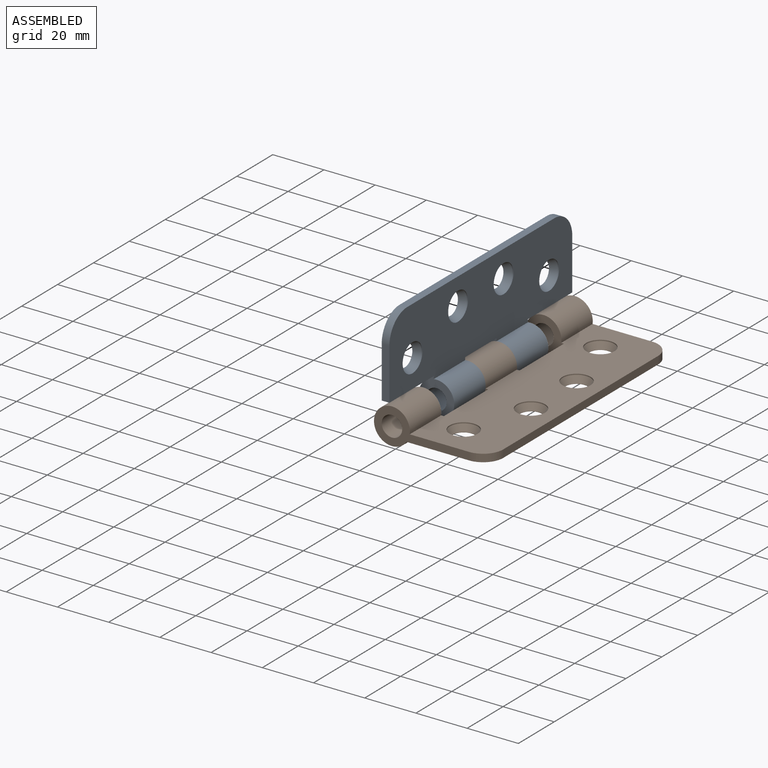
[diagram: assembled view]
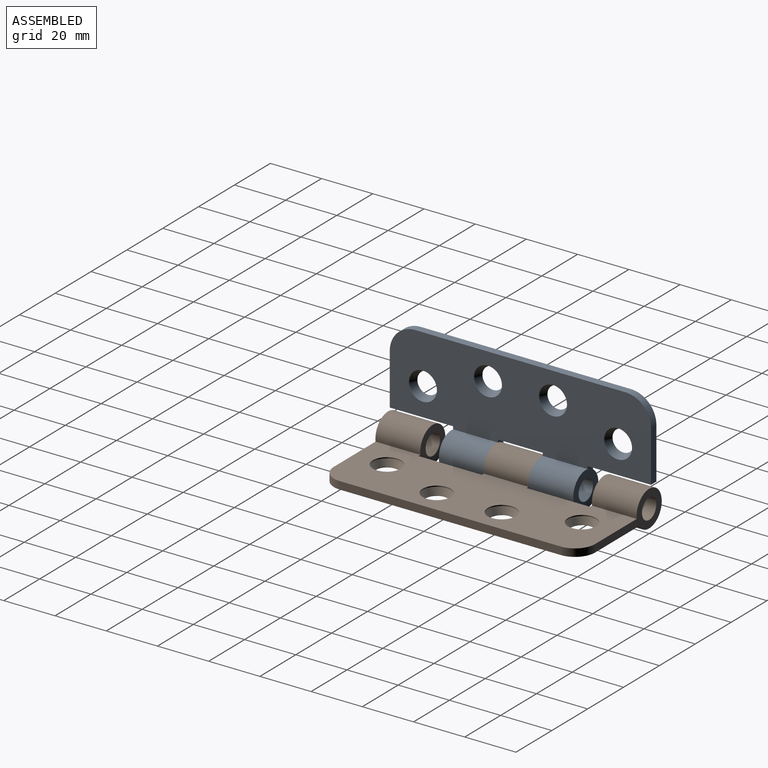
[diagram: assembled view, second angle]
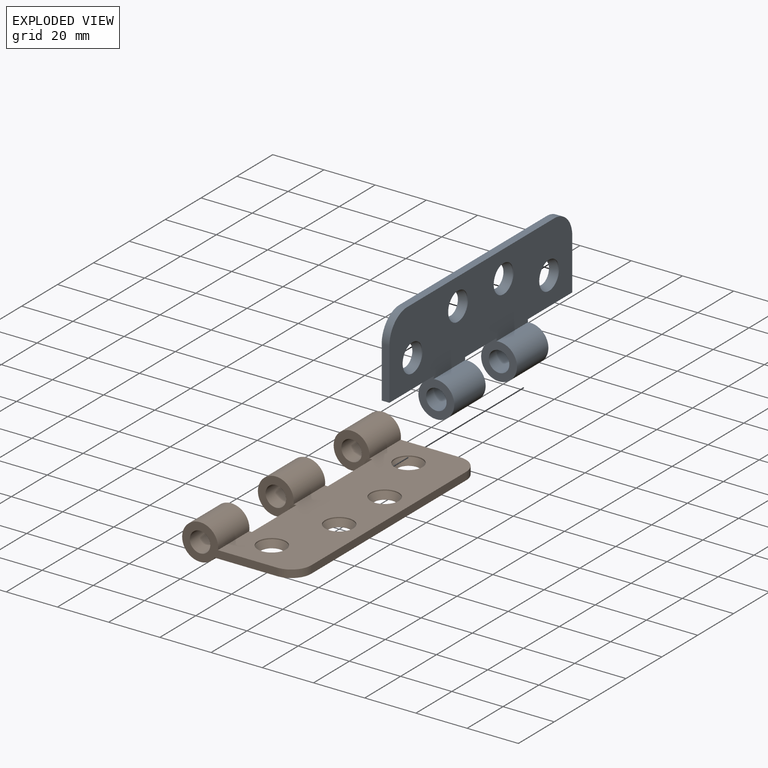
[diagram: exploded view]
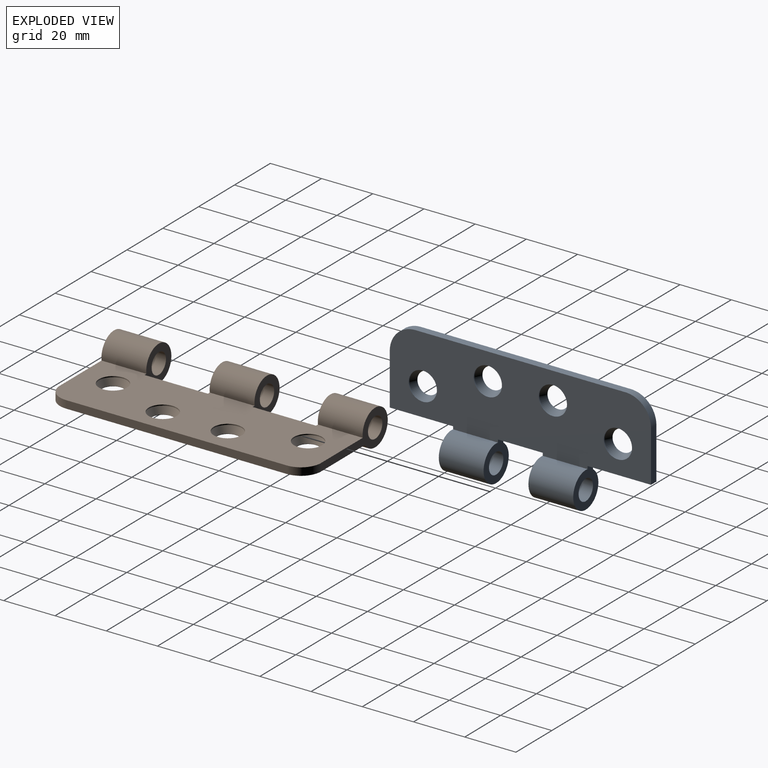
[diagram: exploded view, second angle]
FCSTD DOCUMENT  (FreeCAD 1.0R39319 (Git))
Label: OCT-LDHNG-AA
License: Creative Commons Attribution 4.0
LicenseURL: https://creativecommons.org/licenses/by/4.0/
objects: Sketcher::SketchObject×6, PartDesign::Pad×2, PartDesign::Pocket×2, PartDesign::Plane×2, PartDesign::Hole×2, PartDesign::Fillet×2, PartDesign::Body×2, App::Link×2, App::FeaturePython×2, PartDesign::CoordinateSystem×1, Spreadsheet::Sheet×1, App::Part×1, Assembly::JointGroup×1, Assembly::AssemblyObject×1
note: 41 computed .brp shape members not serialized (recipe doc carries the construction recipe); baked Part::Feature solids carry a one-line shape summary decoded from their .brp

FEATURE [PartDesign::CoordinateSystem] LCS_0
  AttacherType = Attacher::AttachEngine3D
  AttachmentSupport = -> [X_Axis]
  MapMode = 2
FEATURE [Sketcher::SketchObject] Sketch
  ArcFitTolerance = 0
  AttachmentSupport = -> [XZ_Plane001]
  FullyConstrained = true
  MakeInternals = false
  MapMode = 5
  Placement = pos=(0,0,0) rot=(1,0,0;1.5708rad)
  sketch-geometry (6):
    g0: ArcOfCircle CenterX=0 CenterY=0 CenterZ=0 NormalX=0 NormalY=0 NormalZ=1 AngleXU=0 Radius=7 StartAngle=6.13984 EndAngle=11.9581
    g1: LineSegment StartX=6.9282 StartY=-1 StartZ=0 EndX=38 EndY=-1 EndZ=0
    g2: LineSegment StartX=38 StartY=-1 StartZ=0 EndX=38 EndY=-4 EndZ=0
    g3: LineSegment StartX=38 StartY=-4 StartZ=0 EndX=5.74456 EndY=-4 EndZ=0
    g4: GeomPoint [constr] X=0 Y=-7 Z=0
    g5: Circle CenterX=0 CenterY=0 CenterZ=0 NormalX=0 NormalY=0 NormalZ=1 AngleXU=0 Radius=4
  constraints (16):
    c: Coincident(g1,g0)
    c: Horizontal(g1)
    c: Coincident(g2,g1)
    c: Vertical(g2)
    c: Coincident(g3,g2)
    c: Coincident(g3,g0)
    c: Coincident(g0,g-1)
    c: Horizontal(g3)
    c: DistanceY(g2,g2) = 3
    c: PointOnObject(g4,g0)
    c: PointOnObject(g4,g-2)
    c: DistanceY(g4,g0) = 3
    c: Radius(g0) = 7
    c: DistanceX(g0,g1) = 38
    c: Coincident(g5,g0)
    c: Diameter(g5) = 8
FEATURE [PartDesign::Pad] Pad
  Direction = (0,-1,2e-16)
  Length = 102
  Length2 = 10
  Placement = pos=(0,0,0) rot=(1,0,0;1.5708rad)
  Profile = -> Sketch
  ReferenceAxis = -> Sketch [N_Axis]
  Suppressed = false
  Type = 0
FEATURE [Sketcher::SketchObject] Sketch001
  ArcFitTolerance = 0
  AttachmentSupport = -> [XY_Plane001]
  FullyConstrained = true
  MakeInternals = false
  MapMode = 5
  sketch-geometry (18):
    g0: LineSegment StartX=8 StartY=-17.5 StartZ=0 EndX=8 EndY=-42.25 EndZ=0
    g1: LineSegment StartX=8 StartY=-42.25 StartZ=0 EndX=-7 EndY=-42.25 EndZ=0
    g2: LineSegment StartX=-7 StartY=-42.25 StartZ=0 EndX=-7 EndY=-17.5 EndZ=0
    g3: LineSegment StartX=-7 StartY=-59.75 StartZ=0 EndX=8 EndY=-59.75 EndZ=0
    g4: LineSegment StartX=8 StartY=-59.75 StartZ=0 EndX=8 EndY=-84.5 EndZ=0
    g5: LineSegment StartX=8 StartY=-84.5 StartZ=0 EndX=-7 EndY=-84.5 EndZ=0
    g6: LineSegment StartX=-7 StartY=-84.5 StartZ=0 EndX=-7 EndY=-59.75 EndZ=0
    g7: LineSegment [constr] StartX=8 StartY=-17.5 StartZ=0 EndX=8 EndY=0 EndZ=0
    g8: LineSegment [constr] StartX=8 StartY=0 StartZ=0 EndX=-7 EndY=0 EndZ=0
    g9: LineSegment [constr] StartX=-7 StartY=0 StartZ=0 EndX=-7 EndY=-17.5 EndZ=0
    g10: LineSegment [constr] StartX=-7 StartY=-42.25 StartZ=0 EndX=8 EndY=-42.25 EndZ=0
    g11: LineSegment [constr] StartX=8 StartY=-42.25 StartZ=0 EndX=8 EndY=-59.75 EndZ=0
    g12: LineSegment [constr] StartX=-7 StartY=-59.75 StartZ=0 EndX=-7 EndY=-42.25 EndZ=0
    g13: LineSegment [constr] StartX=8 StartY=-84.5 StartZ=0 EndX=8 EndY=-102 EndZ=0
    g14: LineSegment [constr] StartX=8 StartY=-102 StartZ=0 EndX=-7 EndY=-102 EndZ=0
    g15: LineSegment [constr] StartX=-7 StartY=-102 StartZ=0 EndX=-7 EndY=-84.5 EndZ=0
    g16: LineSegment StartX=-7 StartY=-17.5 StartZ=0 EndX=8 EndY=-17.5 EndZ=0
    g17: LineSegment [constr] StartX=0 StartY=0 StartZ=0 EndX=0 EndY=-102 EndZ=0
  constraints (49):
    c: Coincident(g0,g1)
    c: Coincident(g1,g2)
    c: Horizontal(g1)
    c: Vertical(g0)
    c: Vertical(g2)
    c: Coincident(g4,g5)
    c: Coincident(g5,g6)
    c: Coincident(g6,g3)
    c: Horizontal(g3)
    c: Horizontal(g5)
    c: Vertical(g4)
    c: Vertical(g6)
    c: Coincident(g7,g8)
    c: Coincident(g8,g9)
    c: Horizontal(g8)
    c: Vertical(g7)
    c: Vertical(g9)
    c: Coincident(g10,g11)
    c: Coincident(g12,g10)
    c: Vertical(g11)
    c: Vertical(g12)
    c: Coincident(g13,g14)
    c: Coincident(g14,g15)
    c: Horizontal(g14)
    c: Vertical(g13)
    c: Vertical(g15)
    c: Coincident(g10,g1)
    c: Coincident(g0,g10)
    c: Coincident(g16,g0)
    c: Horizontal(g16)
    c: Coincident(g16,g2)
    c: Coincident(g3,g12)
    c: Coincident(g3,g11)
    c: Coincident(g4,g3)
    c: Coincident(g0,g7)
    c: Coincident(g13,g4)
    c: Coincident(g15,g5)
    c: Coincident(g9,g2)
    c: DistanceX(g8,g8) = 15
    c: PointOnObject(g17,g8)
    c: PointOnObject(g17,g14)
    c: Vertical(g17)
    c: DistanceX(g8,g17) = 7
    c: Equal(g9,g12)
    c: Equal(g12,g15)
    c: DistanceY(g9,g9) = 17.5
    c: DistanceY(g14,g8) = 102
    c: Equal(g6,g2)
    c: Coincident(g17,g-1)
FEATURE [PartDesign::Pocket] Pocket  label="loops outer"
  BaseFeature = -> Pad
  Direction = (0,0,-1)
  Length = 14
  Length2 = 5
  Midplane = true
  Placement = pos=(0,0,0) rot=(1,0,0;1.5708rad)
  Profile = -> Sketch001
  ReferenceAxis = -> Sketch001 [N_Axis]
  Suppressed = false
  Type = 0
FEATURE [PartDesign::Plane] DatumPlane  label="outer top face"
  AttachmentOffset = pos=(0,0,-1) rot=(0,0,1;0rad)
  AttachmentSupport = -> [XY_Plane001]
  Length = 80.8897
  MapMode = 5
  Placement = pos=(0,0,-1) rot=(0,0,1;0rad)
  ResizeMode = 0
  Width = 144.89
FEATURE [Sketcher::SketchObject] Sketch002
  ArcFitTolerance = 0
  AttachmentSupport = -> [DatumPlane]
  FullyConstrained = true
  MakeInternals = false
  MapMode = 5
  Placement = pos=(0,0,-1) rot=(0,0,1;0rad)
  sketch-geometry (9):
    g0: Circle CenterX=19 CenterY=-12.9 CenterZ=0 NormalX=0 NormalY=0 NormalZ=1 AngleXU=0 Radius=4
    g1: Circle CenterX=27.5 CenterY=-38.3 CenterZ=0 NormalX=0 NormalY=0 NormalZ=1 AngleXU=0 Radius=4
    g2: Circle CenterX=27.5 CenterY=-63.7 CenterZ=0 NormalX=0 NormalY=0 NormalZ=1 AngleXU=0 Radius=4
    g3: Circle CenterX=19 CenterY=-89.1 CenterZ=0 NormalX=0 NormalY=0 NormalZ=1 AngleXU=0 Radius=4
    g4: LineSegment [constr] StartX=19 StartY=-89.1 StartZ=0 EndX=19 EndY=-12.9 EndZ=0
    g5: LineSegment [constr] StartX=19 StartY=-12.9 StartZ=0 EndX=27.5 EndY=-38.3 EndZ=0
    g6: LineSegment [constr] StartX=27.5 StartY=-38.3 StartZ=0 EndX=27.5 EndY=-63.7 EndZ=0
    g7: LineSegment [constr] StartX=27.5 StartY=-63.7 StartZ=0 EndX=19 EndY=-89.1 EndZ=0
    g8: LineSegment [constr] StartX=0 StartY=-51 StartZ=0 EndX=19 EndY=-51 EndZ=0
  constraints (23):
    c: Coincident(g4,g3)
    c: Coincident(g4,g0)
    c: Coincident(g5,g0)
    c: Coincident(g5,g1)
    c: Coincident(g6,g1)
    c: Coincident(g6,g2)
    c: Coincident(g7,g6)
    c: Coincident(g7,g3)
    c: Vertical(g4)
    c: Vertical(g6)
    c: Equal(g5,g7)
    c: Equal(g2,g1)
    c: Equal(g1,g0)
    c: Equal(g0,g3)
    c: Diameter(g0) = 8
    c: DistanceY(g8,g-1) = 51
    c: PointOnObject(g8,g-2)
    c: Symmetric(g1,g2,g8)
    c: DistanceX(g-1,g3) = 19
    c: DistanceX(g-1,g2) = 27.5
    c: DistanceY(g6,g6) = 25.4
    c: PointOnObject(g8,g4)
    c: DistanceY(g4,g4) = 76.2
FEATURE [PartDesign::Hole] Hole  label="mounting holes outer"
  BaseFeature = -> Pocket
  CustomThreadClearance = 0
  Depth = 226.969
  DepthType = 1
  Diameter = 8.4
  DrillForDepth = true
  DrillPoint = 1
  DrillPointAngle = 118
  HoleCutCountersinkAngle = 55
  HoleCutCustomValues = false
  HoleCutDepth = 0.4
  HoleCutDiameter = 11
  HoleCutType = 3
  ModelThread = false
  Placement = pos=(0,0,0) rot=(1,0,0;1.5708rad)
  Profile = -> Sketch002
  Suppressed = false
  Tapered = false
  TaperedAngle = 90
  ThreadClass = 0
  ThreadDepth = 226.969
  ThreadDepthType = 0
  ThreadDirection = 0
  ThreadFit = 1
  ThreadSize = 16
  ThreadType = 1
  Threaded = false
  UseCustomThreadClearance = false
FEATURE [PartDesign::Fillet] Fillet
  Base = -> Hole [Edge42,Edge9]
  BaseFeature = -> Hole
  Placement = pos=(0,0,0) rot=(1,0,0;1.5708rad)
  Radius = 7.9
  SupportTransform = false
  Suppressed = false
  UseAllEdges = false
FEATURE [PartDesign::Body] outer_half  label="outer half"
  AllowCompound = false
  Group = -> [DatumPlane,Sketch,Pad,Sketch001,Pocket,Sketch002,Hole,Fillet]
  Origin = -> Origin001
  Tip = -> Fillet
FEATURE [Sketcher::SketchObject] Sketch003
  ArcFitTolerance = 0
  AttachmentSupport = -> [XZ_Plane002]
  FullyConstrained = true
  MakeInternals = false
  MapMode = 5
  Placement = pos=(0,0,0) rot=(1,0,0;1.5708rad)
  expr: Constraints[17] = 180 - <<local>>.HingeAngle
  sketch-geometry (7):
    g0: Circle CenterX=0 CenterY=0 CenterZ=0 NormalX=0 NormalY=0 NormalZ=1 AngleXU=0 Radius=4
    g1: ArcOfCircle CenterX=0 CenterY=0 CenterZ=0 NormalX=0 NormalY=0 NormalZ=1 AngleXU=0 Radius=7 StartAngle=2.17904 EndAngle=7.99733
    g2: LineSegment StartX=-1 StartY=6.9282 StartZ=0 EndX=-1 EndY=38 EndZ=0
    g3: LineSegment StartX=-1 StartY=38 StartZ=0 EndX=-4 EndY=38 EndZ=0
    g4: LineSegment StartX=-4 StartY=38 StartZ=0 EndX=-4 EndY=5.74456 EndZ=0
    g5: GeomPoint [constr] X=-7 Y=9e-16 Z=0
    g6: LineSegment [constr] StartX=-7 StartY=9e-16 StartZ=0 EndX=-4 EndY=5e-16 EndZ=0
  constraints (19):
    c: Coincident(g-1,g0)
    c: Diameter(g0) = 8
    c: Coincident(g2,g1)
    c: Coincident(g3,g2)
    c: Coincident(g4,g3)
    c: Coincident(g1,g4)
    c: Perpendicular(g3,g2)
    c: Distance(g3) = 3
    c: Perpendicular(g3,g4)
    c: PointOnObject(g5,g1)
    c: Coincident(g6,g5)
    c: Perpendicular(g1,g6)
    c: Perpendicular(g4,g6)
    c: Distance(g6) = 3
    c: PointOnObject(g6,g4)
    c: Coincident(g1,g0)
    c: Radius(g1) = 7
    c: Angle(g-2,g6) = 1.5708
    c: Distance(g6,g3) = 38
FEATURE [PartDesign::Pad] Pad001
  Direction = (0,-1,2e-16)
  Length = 102
  Length2 = 10
  Placement = pos=(0,0,0) rot=(1,0,0;1.5708rad)
  Profile = -> Sketch003
  ReferenceAxis = -> Sketch003 [N_Axis]
  Suppressed = false
  Type = 0
FEATURE [PartDesign::Plane] DatumPlane001  label="inner top face"
  AttachmentOffset = pos=(-1,0,-1e-16) rot=(0,1,0;1.5708rad)
  AttachmentSupport = -> [XY_Plane002]
  Length = 80.8897
  MapMode = 5
  Placement = pos=(-1,0,-1e-16) rot=(0,1,0;1.5708rad)
  ResizeMode = 0
  Width = 144.89
  expr: .AttachmentOffset.Base.x = -sin(<<local>>.HingeAngle)
  expr: .AttachmentOffset.Base.z = -cos(<<local>>.HingeAngle)
  expr: .AttachmentOffset.Rotation.Pitch = <<local>>.HingeAngle
FEATURE [Sketcher::SketchObject] Sketch004
  ArcFitTolerance = 0
  AttachmentSupport = -> [DatumPlane001]
  FullyConstrained = true
  MakeInternals = false
  MapMode = 5
  Placement = pos=(-1,0,-1e-16) rot=(0,1,0;1.5708rad)
  sketch-geometry (18):
    g0: LineSegment StartX=7 StartY=-24.75 StartZ=0 EndX=-8 EndY=-24.75 EndZ=0
    g1: LineSegment [constr] StartX=-8 StartY=-24.75 StartZ=0 EndX=-8 EndY=-42.25 EndZ=0
    g2: LineSegment StartX=-8 StartY=-42.25 StartZ=0 EndX=7 EndY=-42.25 EndZ=0
    g3: LineSegment [constr] StartX=7 StartY=-42.25 StartZ=0 EndX=7 EndY=-24.75 EndZ=0
    g4: LineSegment StartX=-8 StartY=-59.75 StartZ=0 EndX=7 EndY=-59.75 EndZ=0
    g5: LineSegment [constr] StartX=7 StartY=-59.75 StartZ=0 EndX=7 EndY=-77.25 EndZ=0
    g6: LineSegment StartX=7 StartY=-77.25 StartZ=0 EndX=-8 EndY=-77.25 EndZ=0
    g7: LineSegment [constr] StartX=-8 StartY=-77.25 StartZ=0 EndX=-8 EndY=-59.75 EndZ=0
    g8: LineSegment StartX=-8 StartY=-42.25 StartZ=0 EndX=-8 EndY=-59.75 EndZ=0
    g9: LineSegment StartX=7 StartY=-59.75 StartZ=0 EndX=7 EndY=-42.25 EndZ=0
    g10: LineSegment [constr] StartX=0 StartY=-51 StartZ=0 EndX=7 EndY=-51 EndZ=0
    g11: GeomPoint [constr] X=0 Y=-24.75 Z=0
    g12: LineSegment StartX=7 StartY=-24.75 StartZ=0 EndX=7 EndY=0 EndZ=0
    g13: LineSegment StartX=7 StartY=0 StartZ=0 EndX=-8 EndY=0 EndZ=0
    g14: LineSegment StartX=-8 StartY=0 StartZ=0 EndX=-8 EndY=-24.75 EndZ=0
    g15: LineSegment StartX=-8 StartY=-77.25 StartZ=0 EndX=-8 EndY=-102 EndZ=0
    g16: LineSegment StartX=-8 StartY=-102 StartZ=0 EndX=7 EndY=-102 EndZ=0
    g17: LineSegment StartX=7 StartY=-102 StartZ=0 EndX=7 EndY=-77.25 EndZ=0
  constraints (49):
    c: Coincident(g0,g1)
    c: Coincident(g1,g2)
    c: Coincident(g2,g3)
    c: Coincident(g3,g0)
    c: Horizontal(g0)
    c: Horizontal(g2)
    c: Vertical(g1)
    c: Vertical(g3)
    c: Coincident(g4,g5)
    c: Coincident(g5,g6)
    c: Coincident(g6,g7)
    c: Coincident(g7,g4)
    c: Horizontal(g4)
    c: Horizontal(g6)
    c: Vertical(g5)
    c: Vertical(g7)
    c: Coincident(g8,g1)
    c: Coincident(g8,g4)
    c: Vertical(g8)
    c: Coincident(g9,g4)
    c: Coincident(g9,g2)
    c: Vertical(g9)
    c: DistanceX(g0,g0) = 15
    c: DistanceY(g3,g3) = 17.5
    c: Equal(g5,g3)
    c: PointOnObject(g10,g-2)
    c: DistanceY(g10,g-1) = 51
    c: PointOnObject(g10,g9)
    c: Symmetric(g4,g2,g10)
    c: Equal(g9,g3)
    c: PointOnObject(g11,g0)
    c: DistanceX(g11,g0) = 7
    c: PointOnObject(g11,g-2)
    c: Coincident(g12,g0)
    c: Vertical(g12)
    c: Horizontal(g13)
    c: Coincident(g14,g13)
    c: Coincident(g14,g0)
    c: Coincident(g15,g6)
    c: Vertical(g15)
    c: Coincident(g16,g15)
    c: Horizontal(g16)
    c: Coincident(g17,g16)
    c: Coincident(g17,g5)
    c: Vertical(g17)
    c: Vertical(g14)
    c: Coincident(g13,g12)
    c: PointOnObject(g13,g-1)
    c: DistanceY(g15,g13) = 102
FEATURE [PartDesign::Pocket] Pocket001  label="loops inner"
  BaseFeature = -> Pad001
  Direction = (-1,0,-2e-16)
  Length = 6
  Length2 = 8
  Midplane = true
  Placement = pos=(0,0,0) rot=(1,0,0;1.5708rad)
  Profile = -> Sketch004
  ReferenceAxis = -> Sketch004 [N_Axis]
  Suppressed = false
  Type = 4
FEATURE [Sketcher::SketchObject] Sketch005
  ArcFitTolerance = 0
  AttachmentSupport = -> [DatumPlane001]
  FullyConstrained = true
  MakeInternals = false
  MapMode = 5
  Placement = pos=(-1,0,-1e-16) rot=(0,1,0;1.5708rad)
  sketch-geometry (9):
    g0: LineSegment [constr] StartX=-19 StartY=-12.9 StartZ=0 EndX=-19 EndY=-89.1 EndZ=0
    g1: LineSegment [constr] StartX=-19 StartY=-89.1 StartZ=0 EndX=-27.5 EndY=-63.7 EndZ=0
    g2: LineSegment [constr] StartX=-27.5 StartY=-63.7 StartZ=0 EndX=-27.5 EndY=-38.3 EndZ=0
    g3: LineSegment [constr] StartX=-27.5 StartY=-38.3 StartZ=0 EndX=-19 EndY=-12.9 EndZ=0
    g4: LineSegment [constr] StartX=0 StartY=-51 StartZ=0 EndX=-27.5 EndY=-51 EndZ=0
    g5: Circle CenterX=-19 CenterY=-12.9 CenterZ=0 NormalX=0 NormalY=0 NormalZ=1 AngleXU=0 Radius=4
    g6: Circle CenterX=-19 CenterY=-89.1 CenterZ=0 NormalX=0 NormalY=0 NormalZ=1 AngleXU=0 Radius=4
    g7: Circle CenterX=-27.5 CenterY=-63.7 CenterZ=0 NormalX=0 NormalY=0 NormalZ=1 AngleXU=0 Radius=4
    g8: Circle CenterX=-27.5 CenterY=-38.3 CenterZ=0 NormalX=0 NormalY=0 NormalZ=1 AngleXU=0 Radius=4
  constraints (23):
    c: Vertical(g0)
    c: Coincident(g0,g1)
    c: Coincident(g1,g2)
    c: Vertical(g2)
    c: Coincident(g2,g3)
    c: Coincident(g3,g0)
    c: Equal(g3,g1)
    c: DistanceY(g2,g2) = 25.4
    c: DistanceY(g0,g0) = 76.2
    c: PointOnObject(g4,g-2)
    c: Symmetric(g1,g2,g4)
    c: DistanceX(g0,g-1) = 19
    c: DistanceX(g2,g-1) = 27.5
    c: PointOnObject(g4,g2)
    c: DistanceY(g4,g-1) = 51
    c: Coincident(g5,g0)
    c: Coincident(g6,g0)
    c: Coincident(g7,g1)
    c: Coincident(g8,g2)
    c: Equal(g8,g5)
    c: Equal(g5,g7)
    c: Equal(g7,g6)
    c: Diameter(g6) = 8
FEATURE [PartDesign::Hole] Hole001  label="mounting holes inner"
  BaseFeature = -> Pocket001
  CustomThreadClearance = 0
  Depth = 25
  DepthType = 0
  Diameter = 8.4
  DrillForDepth = false
  DrillPoint = 1
  DrillPointAngle = 118
  HoleCutCountersinkAngle = 55
  HoleCutCustomValues = false
  HoleCutDepth = 0.4
  HoleCutDiameter = 11
  HoleCutType = 3
  ModelThread = false
  Placement = pos=(0,0,0) rot=(1,0,0;1.5708rad)
  Profile = -> Sketch005
  Suppressed = false
  Tapered = false
  TaperedAngle = 90
  ThreadClass = 0
  ThreadDepth = 25
  ThreadDepthType = 0
  ThreadDirection = 0
  ThreadFit = 1
  ThreadSize = 16
  ThreadType = 1
  Threaded = false
  UseCustomThreadClearance = false
FEATURE [Spreadsheet::Sheet] Spreadsheet  label="local"
  cells = A1='hinge angle; B1(HingeAngle)=90; C1='0 deg is straight open, 180 is folded over completely
FEATURE [PartDesign::Fillet] Fillet001
  Base = -> Hole001 [Edge48,Edge47]
  BaseFeature = -> Hole001
  Placement = pos=(0,0,0) rot=(1,0,0;1.5708rad)
  Radius = 10
  Refine = true
  SupportTransform = false
  Suppressed = false
  UseAllEdges = false
FEATURE [PartDesign::Body] Body  label="inner half"
  AllowCompound = false
  Group = -> [DatumPlane001,Sketch003,Pad001,Sketch004,Pocket001,Sketch005,Hole001,Fillet001]
  Origin = -> Origin002
  Tip = -> Fillet001
FEATURE [App::Part] hinge
  Group = -> [LCS_0,outer_half,Body]
  Origin = -> Origin
FEATURE [App::Link] outer_half001  label="outer half"
  LinkedObject = -> outer_half
FEATURE [App::FeaturePython] GroundedJoint  # Assembly grounded joint (typed FeaturePython)
  ObjectToGround = -> outer_half001
FEATURE [App::Link] inner_half  label="inner half"
  LinkPlacement = pos=(0,3e-16,0) rot=(0,0,1;0rad)
  LinkedObject = -> Body
  Placement = pos=(0,3e-16,0) rot=(0,0,1;0rad)
FEATURE [App::FeaturePython] Joint  label="Revolute"  # Assembly joint (typed FeaturePython)
  Activated = true
  AngleMax = 90
  AngleMin = 0
  Detach1 = false
  Detach2 = false
  Distance = 0
  Distance2 = 0
  EnableAngleMax = true
  EnableAngleMin = true
  EnableLengthMax = false
  EnableLengthMin = false
  JointType = 1 (Revolute)
  LengthMax = 0
  LengthMin = 0
  Placement1 = pos=(0,-59.75,2.65e-14) rot=(-1,0,0;1.5708rad)
  Placement2 = pos=(0,-59.75,2.65e-14) rot=(-1,0,0;1.5708rad)
  Reference1 = -> Assembly [inner_half.Edge61,inner_half.Edge61]
  Reference2 = -> Assembly [outer_half001.Edge69,outer_half001.Edge69]
FEATURE [Assembly::JointGroup] Joints
  Group = -> [GroundedJoint,Joint]
FEATURE [Assembly::AssemblyObject] Assembly  label="OCT-LDHNG-AA"
  Group = -> [Joints,outer_half001,GroundedJoint,inner_half,Joint]
  Origin = -> Origin003
  Type = Assembly
